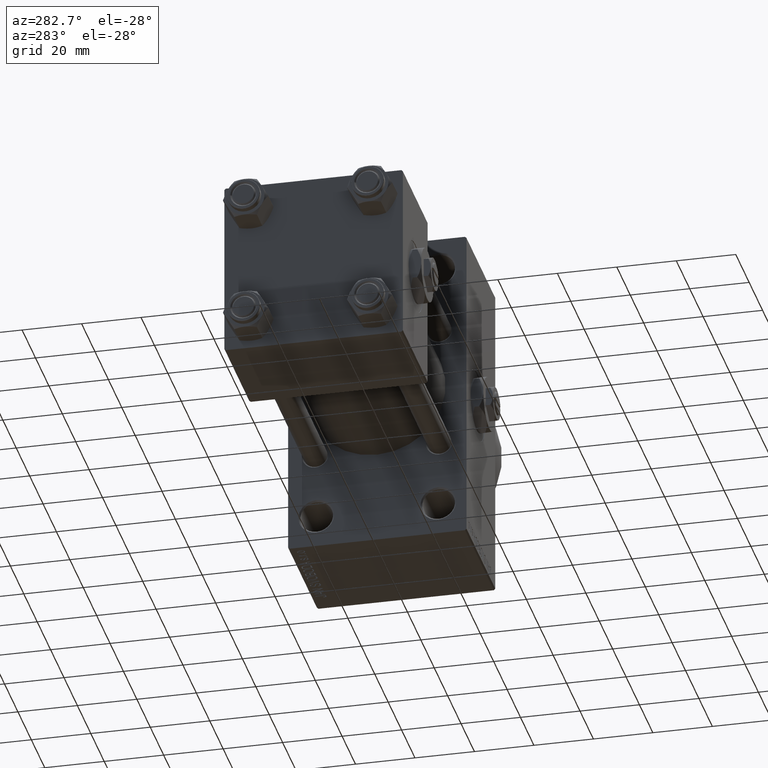
[diagram: clean part render]
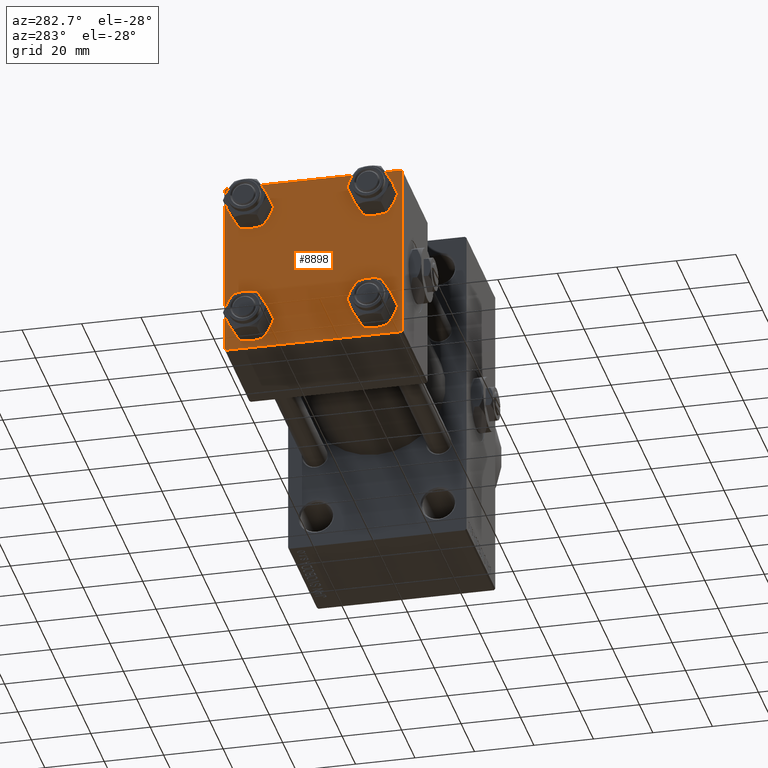
[diagram: same view with one face highlighted and labeled with its STEP entity id]
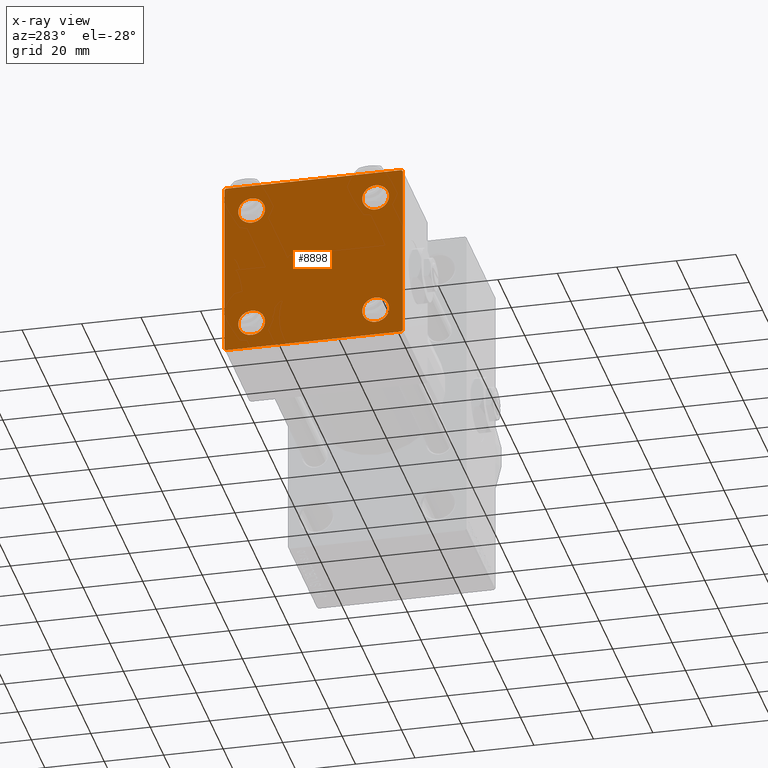
[diagram: x-ray of the same camera — body ghosted, the highlighted face saturated]
A machine part, auxiliary view. The second image highlights one B-rep face of the part: STEP entity #8898.
The next image is the same camera in x-ray: the body ghosted, the highlighted face saturated — about 0% of this face is hidden behind the body in this view.
In plain terms, the highlighted planar face has unit normal (-1, 0, 0).
Its self-contained STEP definition (entity closure, byte-faithful):
#127 = AXIS2_PLACEMENT_3D ( 'NONE', #7858, #25988, #23202 ) ;
#315 = EDGE_CURVE ( 'NONE', #40822, #2135, #22042, .T. ) ;
#406 = CIRCLE ( 'NONE', #42973, 4.500000000000017764 ) ;
#773 = CARTESIAN_POINT ( 'NONE',  ( 0.000000000000000000, -30.00000000000000000, 29.99999999999999289 ) ) ;
#830 = EDGE_CURVE ( 'NONE', #1045, #30110, #35219, .T. ) ;
#1023 = LINE ( 'NONE', #773, #31771 ) ;
#1045 = VERTEX_POINT ( 'NONE', #29257 ) ;
#1209 = VECTOR ( 'NONE', #39900, 1000.000000000000114 ) ;
#1335 = EDGE_LOOP ( 'NONE', ( #29810, #44853 ) ) ;
#1403 = CARTESIAN_POINT ( 'NONE',  ( -0.000000000000000000, -29.74999999999999645, 29.74999999999999645 ) ) ;
#1591 = DIRECTION ( 'NONE',  ( 0.000000000000000000, 0.000000000000000000, 1.000000000000000000 ) ) ;
#1671 = VECTOR ( 'NONE', #31851, 1000.000000000000114 ) ;
#2135 = VERTEX_POINT ( 'NONE', #47512 ) ;
#2187 = CARTESIAN_POINT ( 'NONE',  ( 0.000000000000000000, -20.84999999999999076, -20.85000000000000497 ) ) ;
#2219 = AXIS2_PLACEMENT_3D ( 'NONE', #7477, #6748, #45241 ) ;
#2225 = CARTESIAN_POINT ( 'NONE',  ( 0.000000000000000000, -30.00000000000000000, 29.49999999999999289 ) ) ;
#3398 = CARTESIAN_POINT ( 'NONE',  ( 0.000000000000000000, -29.49999999999998579, 29.99999999999999289 ) ) ;
#3460 = CARTESIAN_POINT ( 'NONE',  ( 0.000000000000000000, -20.84999999999999076, 25.35000000000002274 ) ) ;
#4147 = DIRECTION ( 'NONE',  ( 1.000000000000000000, -0.000000000000000000, 0.000000000000000000 ) ) ;
#4324 = CIRCLE ( 'NONE', #18095, 4.500000000000017764 ) ;
#4668 = AXIS2_PLACEMENT_3D ( 'NONE', #38313, #4858, #11402 ) ;
#4858 = DIRECTION ( 'NONE',  ( 1.000000000000000000, -0.000000000000000000, 0.000000000000000000 ) ) ;
#5113 = DIRECTION ( 'NONE',  ( 1.000000000000000000, -0.000000000000000000, 0.000000000000000000 ) ) ;
#5216 = ORIENTED_EDGE ( 'NONE', *, *, #44522, .F. ) ;
#5569 = DIRECTION ( 'NONE',  ( -0.000000000000000000, -0.7071067811865574537, -0.7071067811865376918 ) ) ;
#5951 = CARTESIAN_POINT ( 'NONE',  ( 0.000000000000000000, 29.99999999999999289, -30.00000000000000000 ) ) ;
#6308 = CARTESIAN_POINT ( 'NONE',  ( 0.000000000000000000, 29.74999999999957723, -29.75000000000040501 ) ) ;
#6748 = DIRECTION ( 'NONE',  ( 1.000000000000000000, -0.000000000000000000, 0.000000000000000000 ) ) ;
#7158 = VERTEX_POINT ( 'NONE', #33903 ) ;
#7477 = CARTESIAN_POINT ( 'NONE',  ( 0.000000000000000000, -20.84999999999999076, -20.85000000000000497 ) ) ;
#7481 = VERTEX_POINT ( 'NONE', #3398 ) ;
#7609 = FACE_OUTER_BOUND ( 'NONE', #28672, .T. ) ;
#7858 = CARTESIAN_POINT ( 'NONE',  ( 0.000000000000000000, 0.000000000000000000, 0.000000000000000000 ) ) ;
#8516 = EDGE_CURVE ( 'NONE', #47382, #7158, #45117, .T. ) ;
#8518 = DIRECTION ( 'NONE',  ( 0.000000000000000000, -1.000000000000000000, -1.156482317317871725E-16 ) ) ;
#8898 = ADVANCED_FACE ( 'NONE', ( #30257, #11139, #26969, #30746, #7609 ), #11630, .T. ) ;
#8982 = AXIS2_PLACEMENT_3D ( 'NONE', #26285, #4147, #27281 ) ;
#10005 = ORIENTED_EDGE ( 'NONE', *, *, #32470, .F. ) ;
#10137 = DIRECTION ( 'NONE',  ( 0.000000000000000000, 0.000000000000000000, 1.000000000000000000 ) ) ;
#11139 = FACE_BOUND ( 'NONE', #1335, .T. ) ;
#11402 = DIRECTION ( 'NONE',  ( 0.000000000000000000, 0.000000000000000000, 1.000000000000000000 ) ) ;
#11630 = PLANE ( 'NONE',  #127 ) ;
#12284 = CARTESIAN_POINT ( 'NONE',  ( 0.000000000000000000, 29.99999999999999289, 30.00000000000000000 ) ) ;
#13295 = VERTEX_POINT ( 'NONE', #15597 ) ;
#13335 = CARTESIAN_POINT ( 'NONE',  ( 0.000000000000000000, 29.99999999999999289, 29.50000000000000000 ) ) ;
#14218 = CARTESIAN_POINT ( 'NONE',  ( 0.000000000000000000, 20.84999999999999787, 25.35000000000001918 ) ) ;
#14424 = EDGE_CURVE ( 'NONE', #30110, #1045, #406, .T. ) ;
#14692 = ORIENTED_EDGE ( 'NONE', *, *, #26498, .T. ) ;
#15530 = EDGE_CURVE ( 'NONE', #30766, #31360, #20526, .T. ) ;
#15597 = CARTESIAN_POINT ( 'NONE',  ( 0.000000000000000000, -30.00000000000000000, -29.50000000000001776 ) ) ;
#15622 = ORIENTED_EDGE ( 'NONE', *, *, #21799, .T. ) ;
#15642 = CIRCLE ( 'NONE', #22068, 4.500000000000017764 ) ;
#16252 = CARTESIAN_POINT ( 'NONE',  ( 0.000000000000000000, 29.74999999999999645, 29.74999999999999645 ) ) ;
#16350 = VERTEX_POINT ( 'NONE', #32146 ) ;
#16586 = ORIENTED_EDGE ( 'NONE', *, *, #830, .T. ) ;
#16770 = ORIENTED_EDGE ( 'NONE', *, *, #41945, .T. ) ;
#18095 = AXIS2_PLACEMENT_3D ( 'NONE', #22132, #22374, #33227 ) ;
#18361 = CIRCLE ( 'NONE', #24793, 4.500000000000017764 ) ;
#19338 = VERTEX_POINT ( 'NONE', #20270 ) ;
#20047 = VECTOR ( 'NONE', #5569, 999.9999999999998863 ) ;
#20270 = CARTESIAN_POINT ( 'NONE',  ( 0.000000000000000000, -20.84999999999999076, 16.34999999999998721 ) ) ;
#20338 = CARTESIAN_POINT ( 'NONE',  ( 0.000000000000000000, -29.75000000000001066, -29.75000000000001066 ) ) ;
#20389 = DIRECTION ( 'NONE',  ( 0.000000000000000000, 0.000000000000000000, -1.000000000000000000 ) ) ;
#20526 = CIRCLE ( 'NONE', #29371, 4.500000000000017764 ) ;
#20819 = VERTEX_POINT ( 'NONE', #2225 ) ;
#20857 = ORIENTED_EDGE ( 'NONE', *, *, #44183, .T. ) ;
#21064 = CARTESIAN_POINT ( 'NONE',  ( 0.000000000000000000, 20.84999999999999787, 20.85000000000000142 ) ) ;
#21124 = VERTEX_POINT ( 'NONE', #47396 ) ;
#21562 = VERTEX_POINT ( 'NONE', #3460 ) ;
#21799 = EDGE_CURVE ( 'NONE', #33997, #21124, #48210, .T. ) ;
#22042 = LINE ( 'NONE', #41430, #40022 ) ;
#22068 = AXIS2_PLACEMENT_3D ( 'NONE', #39330, #5113, #1591 ) ;
#22132 = CARTESIAN_POINT ( 'NONE',  ( 0.000000000000000000, -20.84999999999999076, 20.85000000000000497 ) ) ;
#22374 = DIRECTION ( 'NONE',  ( 1.000000000000000000, -0.000000000000000000, 0.000000000000000000 ) ) ;
#23014 = EDGE_LOOP ( 'NONE', ( #43977, #20857 ) ) ;
#23202 = DIRECTION ( 'NONE',  ( -0.000000000000000000, 0.000000000000000000, 1.000000000000000000 ) ) ;
#23845 = EDGE_LOOP ( 'NONE', ( #45335, #16586 ) ) ;
#24116 = LINE ( 'NONE', #20338, #47863 ) ;
#24550 = LINE ( 'NONE', #16252, #1671 ) ;
#24724 = DIRECTION ( 'NONE',  ( 1.000000000000000000, -0.000000000000000000, 0.000000000000000000 ) ) ;
#24793 = AXIS2_PLACEMENT_3D ( 'NONE', #44605, #24724, #10137 ) ;
#24990 = CARTESIAN_POINT ( 'NONE',  ( 0.000000000000000000, -20.84999999999999076, -25.35000000000002274 ) ) ;
#25419 = LINE ( 'NONE', #6308, #20047 ) ;
#25988 = DIRECTION ( 'NONE',  ( -1.000000000000000000, 0.000000000000000000, -0.000000000000000000 ) ) ;
#26285 = CARTESIAN_POINT ( 'NONE',  ( 0.000000000000000000, 20.84999999999999787, -20.85000000000000142 ) ) ;
#26498 = EDGE_CURVE ( 'NONE', #21562, #19338, #18361, .T. ) ;
#26969 = FACE_BOUND ( 'NONE', #23014, .T. ) ;
#26988 = ORIENTED_EDGE ( 'NONE', *, *, #315, .T. ) ;
#27281 = DIRECTION ( 'NONE',  ( 0.000000000000000000, 0.000000000000000000, 1.000000000000000000 ) ) ;
#27762 = EDGE_CURVE ( 'NONE', #2135, #33997, #25419, .T. ) ;
#28071 = LINE ( 'NONE', #1403, #1209 ) ;
#28620 = EDGE_LOOP ( 'NONE', ( #14692, #16770 ) ) ;
#28672 = EDGE_LOOP ( 'NONE', ( #26988, #44103, #15622, #31706, #5216, #36469, #10005, #36892 ) ) ;
#29257 = CARTESIAN_POINT ( 'NONE',  ( 0.000000000000000000, 20.84999999999999787, 16.34999999999998366 ) ) ;
#29371 = AXIS2_PLACEMENT_3D ( 'NONE', #2187, #48226, #37876 ) ;
#29810 = ORIENTED_EDGE ( 'NONE', *, *, #15530, .T. ) ;
#30110 = VERTEX_POINT ( 'NONE', #14218 ) ;
#30257 = FACE_BOUND ( 'NONE', #28620, .T. ) ;
#30746 = FACE_BOUND ( 'NONE', #23845, .T. ) ;
#30766 = VERTEX_POINT ( 'NONE', #41448 ) ;
#30876 = EDGE_CURVE ( 'NONE', #16350, #40822, #24550, .T. ) ;
#31360 = VERTEX_POINT ( 'NONE', #24990 ) ;
#31706 = ORIENTED_EDGE ( 'NONE', *, *, #45796, .T. ) ;
#31771 = VECTOR ( 'NONE', #20389, 1000.000000000000000 ) ;
#31851 = DIRECTION ( 'NONE',  ( 0.000000000000000000, 0.7071067811865474617, -0.7071067811865474617 ) ) ;
#31908 = DIRECTION ( 'NONE',  ( 0.000000000000000000, -0.7071067811865474617, 0.7071067811865474617 ) ) ;
#32146 = CARTESIAN_POINT ( 'NONE',  ( 0.000000000000000000, 29.49999999999999289, 30.00000000000000000 ) ) ;
#32470 = EDGE_CURVE ( 'NONE', #16350, #7481, #42989, .T. ) ;
#32644 = DIRECTION ( 'NONE',  ( 0.000000000000000000, 0.000000000000000000, 1.000000000000000000 ) ) ;
#33227 = DIRECTION ( 'NONE',  ( 0.000000000000000000, 0.000000000000000000, 1.000000000000000000 ) ) ;
#33903 = CARTESIAN_POINT ( 'NONE',  ( 0.000000000000000000, 20.84999999999999787, -25.35000000000001918 ) ) ;
#33997 = VERTEX_POINT ( 'NONE', #37008 ) ;
#35219 = CIRCLE ( 'NONE', #4668, 4.500000000000017764 ) ;
#36469 = ORIENTED_EDGE ( 'NONE', *, *, #45113, .T. ) ;
#36892 = ORIENTED_EDGE ( 'NONE', *, *, #30876, .T. ) ;
#37008 = CARTESIAN_POINT ( 'NONE',  ( 0.000000000000000000, 29.49999999999997868, -30.00000000000000000 ) ) ;
#37876 = DIRECTION ( 'NONE',  ( 0.000000000000000000, 0.000000000000000000, 1.000000000000000000 ) ) ;
#38313 = CARTESIAN_POINT ( 'NONE',  ( 0.000000000000000000, 20.84999999999999787, 20.85000000000000142 ) ) ;
#39330 = CARTESIAN_POINT ( 'NONE',  ( 0.000000000000000000, 20.84999999999999787, -20.85000000000000142 ) ) ;
#39900 = DIRECTION ( 'NONE',  ( -0.000000000000000000, 0.7071067811865474617, 0.7071067811865474617 ) ) ;
#40022 = VECTOR ( 'NONE', #45202, 1000.000000000000000 ) ;
#40799 = CIRCLE ( 'NONE', #2219, 4.500000000000017764 ) ;
#40822 = VERTEX_POINT ( 'NONE', #13335 ) ;
#40928 = DIRECTION ( 'NONE',  ( 0.000000000000000000, -1.000000000000000000, -1.156482317317871725E-16 ) ) ;
#41430 = CARTESIAN_POINT ( 'NONE',  ( 0.000000000000000000, 29.99999999999999289, 30.00000000000000000 ) ) ;
#41448 = CARTESIAN_POINT ( 'NONE',  ( 0.000000000000000000, -20.84999999999999076, -16.34999999999998721 ) ) ;
#41945 = EDGE_CURVE ( 'NONE', #19338, #21562, #4324, .T. ) ;
#42973 = AXIS2_PLACEMENT_3D ( 'NONE', #21064, #46989, #32644 ) ;
#42989 = LINE ( 'NONE', #12284, #44314 ) ;
#43977 = ORIENTED_EDGE ( 'NONE', *, *, #8516, .T. ) ;
#44103 = ORIENTED_EDGE ( 'NONE', *, *, #27762, .T. ) ;
#44183 = EDGE_CURVE ( 'NONE', #7158, #47382, #15642, .T. ) ;
#44314 = VECTOR ( 'NONE', #8518, 1000.000000000000000 ) ;
#44522 = EDGE_CURVE ( 'NONE', #20819, #13295, #1023, .T. ) ;
#44605 = CARTESIAN_POINT ( 'NONE',  ( 0.000000000000000000, -20.84999999999999076, 20.85000000000000497 ) ) ;
#44853 = ORIENTED_EDGE ( 'NONE', *, *, #49766, .T. ) ;
#45113 = EDGE_CURVE ( 'NONE', #20819, #7481, #28071, .T. ) ;
#45117 = CIRCLE ( 'NONE', #8982, 4.500000000000017764 ) ;
#45202 = DIRECTION ( 'NONE',  ( 0.000000000000000000, 0.000000000000000000, -1.000000000000000000 ) ) ;
#45241 = DIRECTION ( 'NONE',  ( 0.000000000000000000, 0.000000000000000000, 1.000000000000000000 ) ) ;
#45335 = ORIENTED_EDGE ( 'NONE', *, *, #14424, .T. ) ;
#45796 = EDGE_CURVE ( 'NONE', #21124, #13295, #24116, .T. ) ;
#46989 = DIRECTION ( 'NONE',  ( 1.000000000000000000, -0.000000000000000000, 0.000000000000000000 ) ) ;
#47240 = VECTOR ( 'NONE', #40928, 1000.000000000000000 ) ;
#47382 = VERTEX_POINT ( 'NONE', #49325 ) ;
#47396 = CARTESIAN_POINT ( 'NONE',  ( 0.000000000000000000, -29.50000000000000000, -30.00000000000000711 ) ) ;
#47512 = CARTESIAN_POINT ( 'NONE',  ( 0.000000000000000000, 29.99999999999999289, -29.50000000000000000 ) ) ;
#47863 = VECTOR ( 'NONE', #31908, 1000.000000000000114 ) ;
#48210 = LINE ( 'NONE', #5951, #47240 ) ;
#48226 = DIRECTION ( 'NONE',  ( 1.000000000000000000, -0.000000000000000000, 0.000000000000000000 ) ) ;
#49325 = CARTESIAN_POINT ( 'NONE',  ( 0.000000000000000000, 20.84999999999999787, -16.34999999999998366 ) ) ;
#49766 = EDGE_CURVE ( 'NONE', #31360, #30766, #40799, .T. ) ;